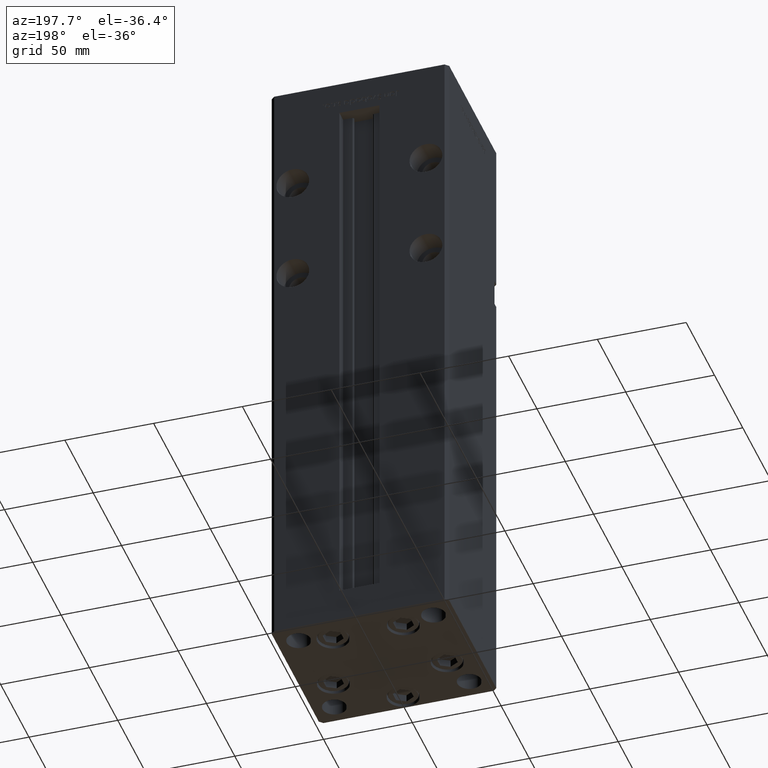
[diagram: clean part render]
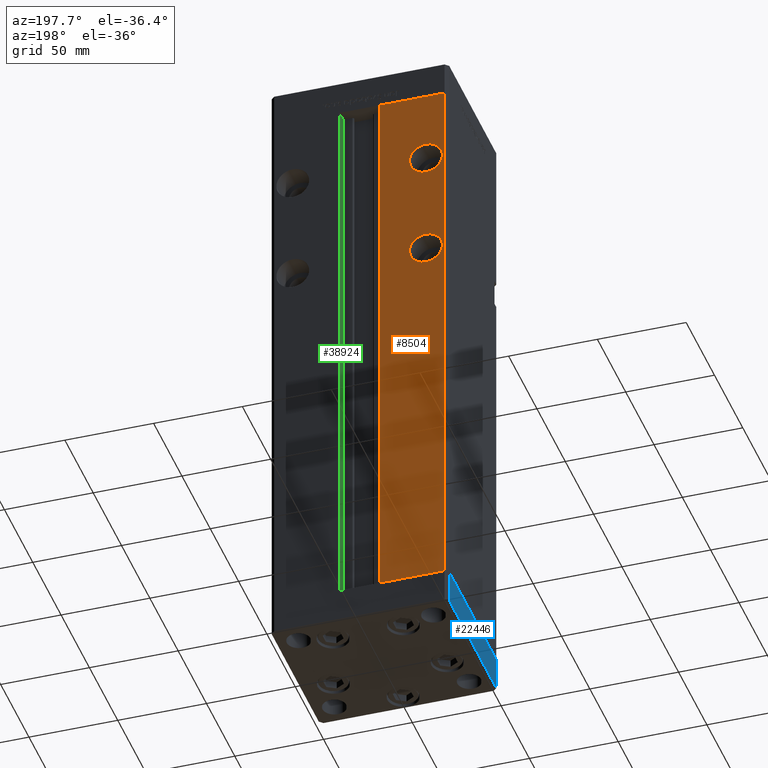
[diagram: same view with three faces highlighted in distinct colors, each labeled with its STEP entity id]
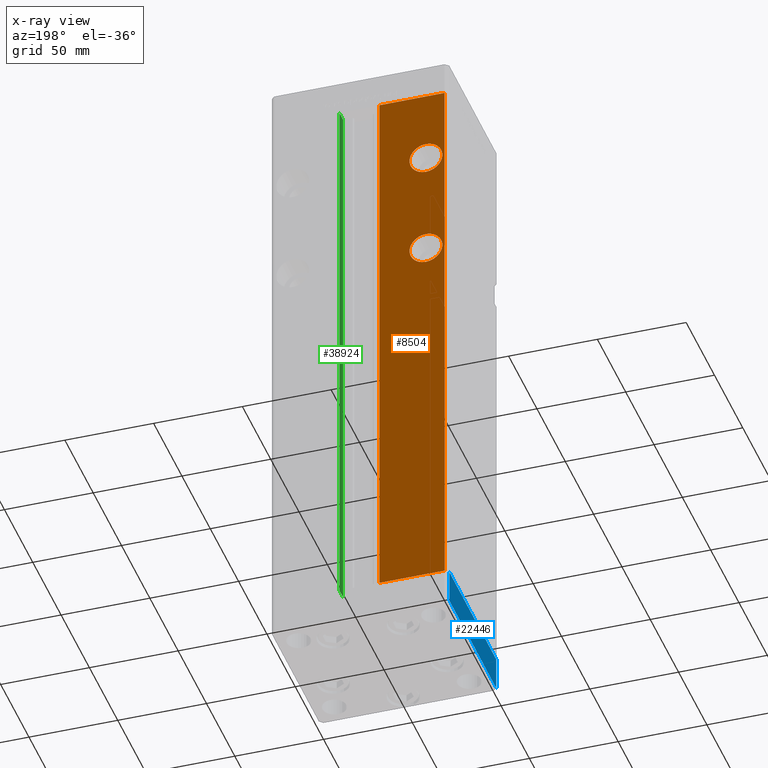
[diagram: x-ray of the same camera — body ghosted, the three highlighted faces saturated]
A machine part, auxiliary view with three faces highlighted in distinct colors.
The next image is the same camera in x-ray (body ghosted, the three faces saturated) — at least one of them is partly hidden behind the body in this view.
Their STEP definitions:

[orange] entity #8504 — the highlighted planar face has unit normal (0, -1, 0).
#1838 = AXIS2_PLACEMENT_3D ( 'NONE', #50319, #13492, #46289 ) ;
#2576 = VERTEX_POINT ( 'NONE', #39832 ) ;
#3125 = EDGE_CURVE ( 'NONE', #6482, #2576, #53164, .T. ) ;
#3189 = DIRECTION ( 'NONE',  ( -1.000000000000000000, 0.000000000000000000, 0.000000000000000000 ) ) ;
#3495 = DIRECTION ( 'NONE',  ( -0.000000000000000000, -0.000000000000000000, -1.000000000000000000 ) ) ;
#4281 = PLANE ( 'NONE',  #37405 ) ;
#4764 = DIRECTION ( 'NONE',  ( 0.000000000000000000, 0.000000000000000000, -1.000000000000000000 ) ) ;
#5160 = ORIENTED_EDGE ( 'NONE', *, *, #19738, .F. ) ;
#6482 = VERTEX_POINT ( 'NONE', #30712 ) ;
#7244 = VERTEX_POINT ( 'NONE', #25641 ) ;
#7522 = FACE_BOUND ( 'NONE', #27091, .T. ) ;
#8321 = FACE_BOUND ( 'NONE', #11524, .T. ) ;
#8504 = ADVANCED_FACE ( 'NONE', ( #7522, #8321, #41119 ), #4281, .F. ) ;
#10802 = EDGE_LOOP ( 'NONE', ( #30354, #5160, #12020, #42641 ) ) ;
#10818 = DIRECTION ( 'NONE',  ( 0.000000000000000000, 0.000000000000000000, -1.000000000000000000 ) ) ;
#11524 = EDGE_LOOP ( 'NONE', ( #51625, #43204 ) ) ;
#11811 = DIRECTION ( 'NONE',  ( 0.000000000000000000, -1.000000000000000000, 0.000000000000000000 ) ) ;
#12004 = DIRECTION ( 'NONE',  ( 0.000000000000000000, 1.000000000000000000, 0.000000000000000000 ) ) ;
#12020 = ORIENTED_EDGE ( 'NONE', *, *, #35708, .T. ) ;
#13492 = DIRECTION ( 'NONE',  ( 0.000000000000000000, 1.000000000000000000, 0.000000000000000000 ) ) ;
#15412 = VECTOR ( 'NONE', #3495, 1000.000000000000000 ) ;
#15502 = CARTESIAN_POINT ( 'NONE',  ( -37.50000000000000000, 43.50000000000000000, 217.5000000000000000 ) ) ;
#16145 = VECTOR ( 'NONE', #41924, 1000.000000000000000 ) ;
#16468 = CIRCLE ( 'NONE', #36193, 9.249999999999980460 ) ;
#16919 = LINE ( 'NONE', #29838, #16145 ) ;
#19738 = EDGE_CURVE ( 'NONE', #30861, #2576, #16919, .T. ) ;
#20703 = DIRECTION ( 'NONE',  ( 0.000000000000000000, -0.000000000000000000, -1.000000000000000000 ) ) ;
#20965 = LINE ( 'NONE', #40319, #15412 ) ;
#24501 = EDGE_CURVE ( 'NONE', #40986, #49376, #34345, .T. ) ;
#25026 = CIRCLE ( 'NONE', #1838, 9.250000000000008882 ) ;
#25641 = CARTESIAN_POINT ( 'NONE',  ( -37.50000000000000000, 43.50000000000000000, 208.2500000000000000 ) ) ;
#25964 = ORIENTED_EDGE ( 'NONE', *, *, #24501, .F. ) ;
#26186 = CARTESIAN_POINT ( 'NONE',  ( -48.00000000000000711, 43.50000000000000000, 0.000000000000000000 ) ) ;
#27091 = EDGE_LOOP ( 'NONE', ( #28559, #25964 ) ) ;
#28430 = EDGE_CURVE ( 'NONE', #7244, #35361, #50726, .T. ) ;
#28559 = ORIENTED_EDGE ( 'NONE', *, *, #34132, .F. ) ;
#29025 = CARTESIAN_POINT ( 'NONE',  ( -11.24999999999999645, 43.50000000000000000, 318.5000000000000000 ) ) ;
#29520 = CARTESIAN_POINT ( 'NONE',  ( -37.50000000000000000, 43.50000000000000000, 277.4999999999999432 ) ) ;
#29838 = CARTESIAN_POINT ( 'NONE',  ( -11.24999999999999645, 43.50000000000000000, 0.000000000000000000 ) ) ;
#30354 = ORIENTED_EDGE ( 'NONE', *, *, #3125, .T. ) ;
#30712 = CARTESIAN_POINT ( 'NONE',  ( -48.00000000000000711, 43.50000000000000000, 318.5000000000000000 ) ) ;
#30861 = VERTEX_POINT ( 'NONE', #49605 ) ;
#31016 = AXIS2_PLACEMENT_3D ( 'NONE', #15502, #12004, #47764 ) ;
#31968 = CARTESIAN_POINT ( 'NONE',  ( -11.24999999999999645, 43.50000000000000000, 318.5000000000000000 ) ) ;
#33485 = CARTESIAN_POINT ( 'NONE',  ( -37.50000000000000000, 43.50000000000000000, 226.7500000000000000 ) ) ;
#33561 = EDGE_CURVE ( 'NONE', #35361, #7244, #25026, .T. ) ;
#34132 = EDGE_CURVE ( 'NONE', #49376, #40986, #16468, .T. ) ;
#34345 = CIRCLE ( 'NONE', #42885, 9.249999999999980460 ) ;
#35361 = VERTEX_POINT ( 'NONE', #33485 ) ;
#35708 = EDGE_CURVE ( 'NONE', #30861, #41475, #36262, .T. ) ;
#36193 = AXIS2_PLACEMENT_3D ( 'NONE', #29520, #37580, #4764 ) ;
#36262 = LINE ( 'NONE', #52639, #50870 ) ;
#36523 = DIRECTION ( 'NONE',  ( 1.000000000000000000, 0.000000000000000000, 0.000000000000000000 ) ) ;
#37241 = CARTESIAN_POINT ( 'NONE',  ( -37.50000000000000000, 43.50000000000000000, 286.7499999999999432 ) ) ;
#37405 = AXIS2_PLACEMENT_3D ( 'NONE', #29025, #11811, #20703 ) ;
#37580 = DIRECTION ( 'NONE',  ( 0.000000000000000000, 1.000000000000000000, -0.000000000000000000 ) ) ;
#38099 = CARTESIAN_POINT ( 'NONE',  ( -37.50000000000000000, 43.50000000000000000, 268.2500000000000000 ) ) ;
#39327 = DIRECTION ( 'NONE',  ( 0.000000000000000000, 1.000000000000000000, -0.000000000000000000 ) ) ;
#39832 = CARTESIAN_POINT ( 'NONE',  ( -11.24999999999999645, 43.50000000000000000, 318.5000000000000000 ) ) ;
#40319 = CARTESIAN_POINT ( 'NONE',  ( -48.00000000000000711, 43.50000000000000000, 318.5000000000000000 ) ) ;
#40986 = VERTEX_POINT ( 'NONE', #38099 ) ;
#41119 = FACE_OUTER_BOUND ( 'NONE', #10802, .T. ) ;
#41475 = VERTEX_POINT ( 'NONE', #26186 ) ;
#41924 = DIRECTION ( 'NONE',  ( -0.000000000000000000, -0.000000000000000000, 1.000000000000000000 ) ) ;
#42641 = ORIENTED_EDGE ( 'NONE', *, *, #43840, .F. ) ;
#42885 = AXIS2_PLACEMENT_3D ( 'NONE', #43342, #39327, #10818 ) ;
#43204 = ORIENTED_EDGE ( 'NONE', *, *, #28430, .F. ) ;
#43342 = CARTESIAN_POINT ( 'NONE',  ( -37.50000000000000000, 43.50000000000000000, 277.4999999999999432 ) ) ;
#43840 = EDGE_CURVE ( 'NONE', #6482, #41475, #20965, .T. ) ;
#46289 = DIRECTION ( 'NONE',  ( 0.000000000000000000, 0.000000000000000000, 1.000000000000000000 ) ) ;
#47764 = DIRECTION ( 'NONE',  ( 0.000000000000000000, 0.000000000000000000, 1.000000000000000000 ) ) ;
#49376 = VERTEX_POINT ( 'NONE', #37241 ) ;
#49605 = CARTESIAN_POINT ( 'NONE',  ( -11.24999999999999645, 43.50000000000000000, 0.000000000000000000 ) ) ;
#50319 = CARTESIAN_POINT ( 'NONE',  ( -37.50000000000000000, 43.50000000000000000, 217.5000000000000000 ) ) ;
#50726 = CIRCLE ( 'NONE', #31016, 9.250000000000008882 ) ;
#50870 = VECTOR ( 'NONE', #3189, 1000.000000000000000 ) ;
#51625 = ORIENTED_EDGE ( 'NONE', *, *, #33561, .F. ) ;
#52438 = VECTOR ( 'NONE', #36523, 1000.000000000000000 ) ;
#52639 = CARTESIAN_POINT ( 'NONE',  ( -11.24999999999999645, 43.50000000000000000, 0.000000000000000000 ) ) ;
#53164 = LINE ( 'NONE', #31968, #52438 ) ;

[blue] entity #22446 — the highlighted planar face has unit normal (-1, -0, 0).
#250 = VERTEX_POINT ( 'NONE', #19838 ) ;
#799 = VERTEX_POINT ( 'NONE', #47492 ) ;
#4218 = LINE ( 'NONE', #35960, #9913 ) ;
#4586 = EDGE_LOOP ( 'NONE', ( #15898, #46764, #47712, #51119 ) ) ;
#5726 = CARTESIAN_POINT ( 'NONE',  ( 50.00000000000000000, -41.49999999999999289, 0.000000000000000000 ) ) ;
#6137 = DIRECTION ( 'NONE',  ( -1.003213576468515193E-15, 1.000000000000000000, 0.000000000000000000 ) ) ;
#8817 = EDGE_CURVE ( 'NONE', #20163, #250, #4218, .T. ) ;
#9913 = VECTOR ( 'NONE', #20642, 1000.000000000000000 ) ;
#11510 = DIRECTION ( 'NONE',  ( -1.003213576468515193E-15, 1.000000000000000000, 0.000000000000000000 ) ) ;
#12039 = CARTESIAN_POINT ( 'NONE',  ( 50.00000000000000000, -41.49999999999999289, -19.00000000000000000 ) ) ;
#14451 = CARTESIAN_POINT ( 'NONE',  ( 50.00000000000000000, -41.49999999999999289, -19.00000000000000000 ) ) ;
#15898 = ORIENTED_EDGE ( 'NONE', *, *, #17376, .F. ) ;
#17376 = EDGE_CURVE ( 'NONE', #250, #799, #46845, .T. ) ;
#19536 = EDGE_CURVE ( 'NONE', #26521, #799, #33684, .T. ) ;
#19838 = CARTESIAN_POINT ( 'NONE',  ( 50.00000000000000000, -41.49999999999999289, 0.000000000000000000 ) ) ;
#20163 = VERTEX_POINT ( 'NONE', #44903 ) ;
#20642 = DIRECTION ( 'NONE',  ( 0.000000000000000000, 0.000000000000000000, 1.000000000000000000 ) ) ;
#22443 = VECTOR ( 'NONE', #6137, 1000.000000000000000 ) ;
#22446 = ADVANCED_FACE ( 'NONE', ( #36261 ), #23620, .T. ) ;
#23620 = PLANE ( 'NONE',  #49687 ) ;
#26521 = VERTEX_POINT ( 'NONE', #34341 ) ;
#29026 = VECTOR ( 'NONE', #37989, 1000.000000000000000 ) ;
#29184 = EDGE_CURVE ( 'NONE', #20163, #26521, #51818, .T. ) ;
#29646 = CARTESIAN_POINT ( 'NONE',  ( 49.99999999999992184, 41.49999999999998579, -19.00000000000000000 ) ) ;
#30994 = DIRECTION ( 'NONE',  ( -1.003213576468515193E-15, 1.000000000000000000, 0.000000000000000000 ) ) ;
#33684 = LINE ( 'NONE', #29646, #29026 ) ;
#34341 = CARTESIAN_POINT ( 'NONE',  ( 49.99999999999992184, 41.49999999999998579, -19.00000000000000000 ) ) ;
#35960 = CARTESIAN_POINT ( 'NONE',  ( 50.00000000000000000, -41.49999999999999289, -19.00000000000000000 ) ) ;
#36261 = FACE_OUTER_BOUND ( 'NONE', #4586, .T. ) ;
#37989 = DIRECTION ( 'NONE',  ( 0.000000000000000000, 0.000000000000000000, 1.000000000000000000 ) ) ;
#39764 = DIRECTION ( 'NONE',  ( 1.000000000000000000, 1.003213576468515193E-15, -0.000000000000000000 ) ) ;
#40108 = VECTOR ( 'NONE', #30994, 1000.000000000000000 ) ;
#44903 = CARTESIAN_POINT ( 'NONE',  ( 50.00000000000000000, -41.49999999999999289, -19.00000000000000000 ) ) ;
#46764 = ORIENTED_EDGE ( 'NONE', *, *, #8817, .F. ) ;
#46845 = LINE ( 'NONE', #5726, #40108 ) ;
#47492 = CARTESIAN_POINT ( 'NONE',  ( 49.99999999999992184, 41.49999999999998579, 0.000000000000000000 ) ) ;
#47712 = ORIENTED_EDGE ( 'NONE', *, *, #29184, .T. ) ;
#49687 = AXIS2_PLACEMENT_3D ( 'NONE', #12039, #39764, #11510 ) ;
#51119 = ORIENTED_EDGE ( 'NONE', *, *, #19536, .T. ) ;
#51818 = LINE ( 'NONE', #14451, #22443 ) ;

[green] entity #38924 — the highlighted planar face has unit normal (1, 0, 0).
#1888 = LINE ( 'NONE', #18284, #21779 ) ;
#4271 = CARTESIAN_POINT ( 'NONE',  ( 11.24999999999999645, 0.000000000000000000, 318.5000000000000000 ) ) ;
#6191 = ORIENTED_EDGE ( 'NONE', *, *, #28882, .F. ) ;
#6852 = EDGE_CURVE ( 'NONE', #14117, #18676, #1888, .T. ) ;
#7595 = CARTESIAN_POINT ( 'NONE',  ( 11.24999999999999645, 37.00000000000000000, 0.000000000000000000 ) ) ;
#7692 = EDGE_CURVE ( 'NONE', #27680, #24759, #28748, .T. ) ;
#8192 = LINE ( 'NONE', #12226, #49933 ) ;
#9721 = DIRECTION ( 'NONE',  ( -0.000000000000000000, -0.000000000000000000, 1.000000000000000000 ) ) ;
#12226 = CARTESIAN_POINT ( 'NONE',  ( 11.24999999999999645, 43.50000000000000000, 0.000000000000000000 ) ) ;
#14117 = VERTEX_POINT ( 'NONE', #47006 ) ;
#16183 = DIRECTION ( 'NONE',  ( 0.000000000000000000, 0.000000000000000000, -1.000000000000000000 ) ) ;
#18284 = CARTESIAN_POINT ( 'NONE',  ( 11.24999999999999645, 37.00000000000000000, 0.000000000000000000 ) ) ;
#18676 = VERTEX_POINT ( 'NONE', #38756 ) ;
#19620 = DIRECTION ( 'NONE',  ( -0.000000000000000000, -1.000000000000000000, 0.000000000000000000 ) ) ;
#19985 = PLANE ( 'NONE',  #41532 ) ;
#21779 = VECTOR ( 'NONE', #30649, 1000.000000000000000 ) ;
#24759 = VERTEX_POINT ( 'NONE', #44957 ) ;
#27680 = VERTEX_POINT ( 'NONE', #39653 ) ;
#28748 = LINE ( 'NONE', #4271, #40661 ) ;
#28882 = EDGE_CURVE ( 'NONE', #18676, #27680, #8192, .T. ) ;
#30649 = DIRECTION ( 'NONE',  ( 0.000000000000000000, 1.000000000000000000, 0.000000000000000000 ) ) ;
#32339 = DIRECTION ( 'NONE',  ( -0.000000000000000000, -0.000000000000000000, 1.000000000000000000 ) ) ;
#34319 = EDGE_LOOP ( 'NONE', ( #6191, #47288, #51576, #48641 ) ) ;
#36819 = VECTOR ( 'NONE', #32339, 1000.000000000000000 ) ;
#38756 = CARTESIAN_POINT ( 'NONE',  ( 11.24999999999999645, 43.50000000000000000, 0.000000000000000000 ) ) ;
#38924 = ADVANCED_FACE ( 'NONE', ( #40928 ), #19985, .F. ) ;
#39653 = CARTESIAN_POINT ( 'NONE',  ( 11.24999999999998934, 43.50000000000000000, 318.5000000000000000 ) ) ;
#40661 = VECTOR ( 'NONE', #19620, 1000.000000000000000 ) ;
#40928 = FACE_OUTER_BOUND ( 'NONE', #34319, .T. ) ;
#41532 = AXIS2_PLACEMENT_3D ( 'NONE', #7595, #44964, #16183 ) ;
#44957 = CARTESIAN_POINT ( 'NONE',  ( 11.24999999999999645, 37.00000000000000000, 318.5000000000000000 ) ) ;
#44964 = DIRECTION ( 'NONE',  ( 1.000000000000000000, -0.000000000000000000, 0.000000000000000000 ) ) ;
#45712 = EDGE_CURVE ( 'NONE', #14117, #24759, #52751, .T. ) ;
#47006 = CARTESIAN_POINT ( 'NONE',  ( 11.24999999999999645, 37.00000000000000000, 0.000000000000000000 ) ) ;
#47288 = ORIENTED_EDGE ( 'NONE', *, *, #6852, .F. ) ;
#48641 = ORIENTED_EDGE ( 'NONE', *, *, #7692, .F. ) ;
#48720 = CARTESIAN_POINT ( 'NONE',  ( 11.24999999999999645, 37.00000000000000000, 0.000000000000000000 ) ) ;
#49933 = VECTOR ( 'NONE', #9721, 1000.000000000000000 ) ;
#51576 = ORIENTED_EDGE ( 'NONE', *, *, #45712, .T. ) ;
#52751 = LINE ( 'NONE', #48720, #36819 ) ;